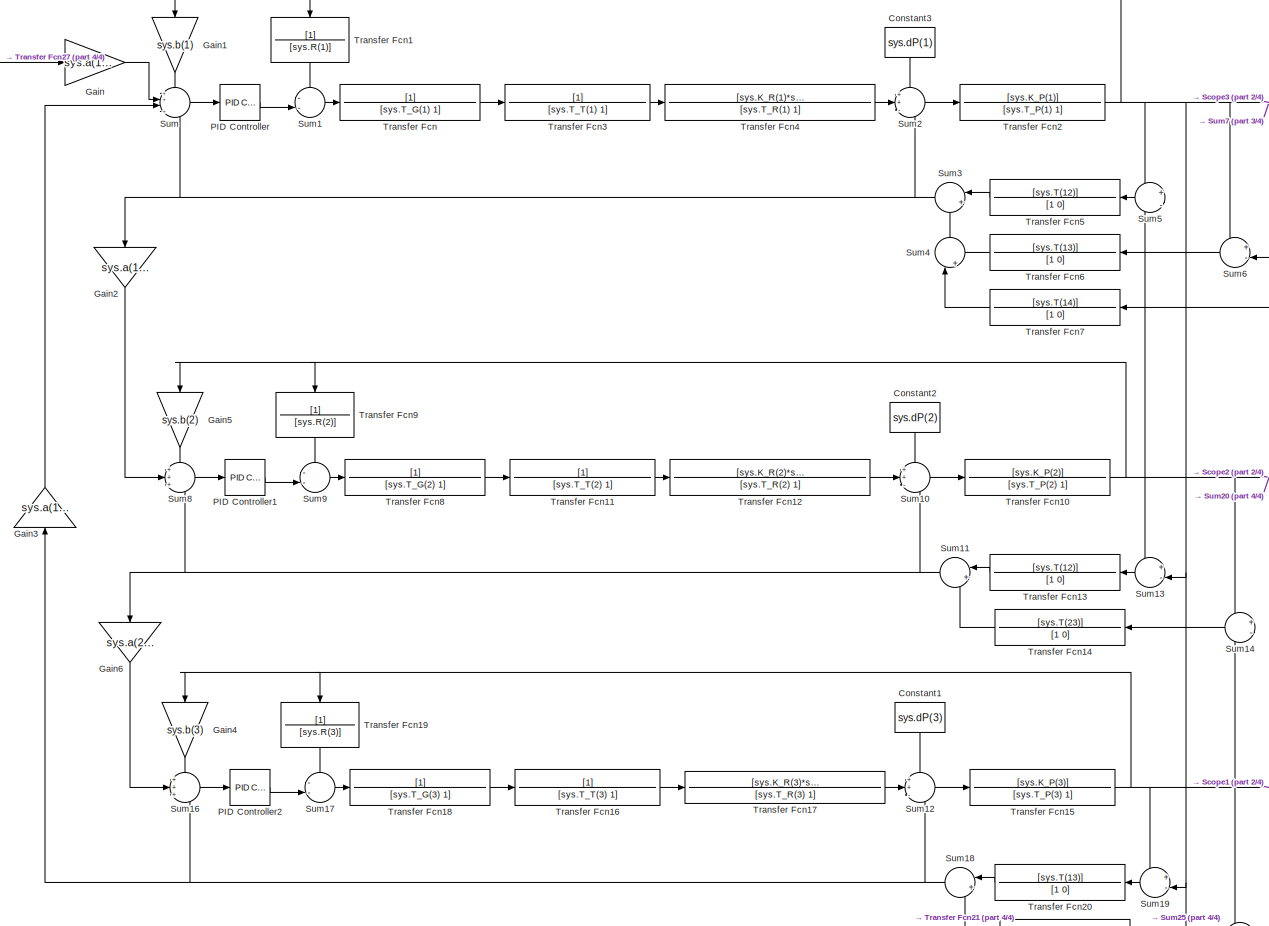
[diagram: root canvas - part 1/4, full width, middle band]
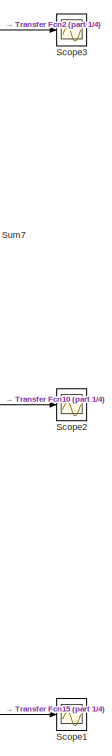
[diagram: root canvas - part 2/4, middle right region]
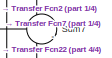
[diagram: root canvas - part 3/4, top right region]
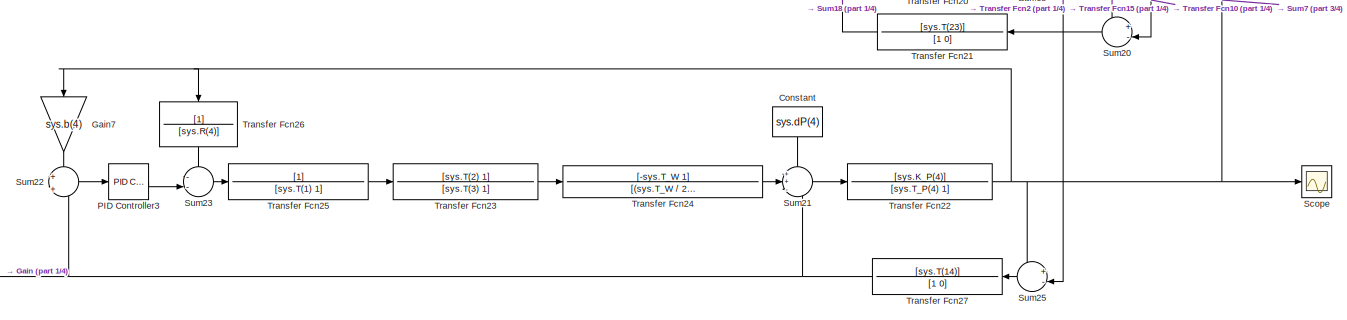
[diagram: root canvas - part 4/4, full width, bottom band]
MODEL slx_bae5938742f6
KIND model
CONFIG AbsTol = auto
CONFIG EnableMultiTasking = off
CONFIG FixedStep = auto
CONFIG MaxStep = auto
CONFIG MinStep = auto
CONFIG RelTol = 1e-3
CONFIG SampleTimeConstraint = Unconstrained
CONFIG SolverName = VariableStepAuto
CONFIG StartTime = 0.0
CONFIG StopTime = 10.0
BLOCK [Constant] Constant
  NameLocation = left
  Value = sys.dP(4)
BLOCK [Constant] Constant1
  NameLocation = left
  Value = sys.dP(3)
BLOCK [Constant] Constant2
  NameLocation = left
  Value = sys.dP(2)
BLOCK [Constant] Constant3
  NameLocation = left
  Value = sys.dP(1)
BLOCK [Gain] Gain
  Gain = sys.a(14)
BLOCK [Gain] Gain1
  Gain = sys.b(1)
  NameLocation = left
BLOCK [Gain] Gain2
  Gain = sys.a(12)
  NameLocation = left
BLOCK [Gain] Gain3
  Gain = sys.a(13)
  NameLocation = right
BLOCK [Gain] Gain4
  Gain = sys.b(3)
  NameLocation = left
BLOCK [Gain] Gain5
  Gain = sys.b(2)
  NameLocation = left
BLOCK [Gain] Gain6
  Gain = sys.a(23)
  NameLocation = left
BLOCK [Gain] Gain7
  Gain = sys.b(4)
  NameLocation = left
BLOCK [Reference] PID Controller  REF=slpidlib/PID Controller
  LibrarySourceBlock = simulink/Continuous/PID Controller
  SourceBlock = slpidlib/PID Controller
  SourceType = PID 1dof
BLOCK [Reference] PID Controller1  REF=slpidlib/PID Controller
  LibrarySourceBlock = simulink/Continuous/PID Controller
  SourceBlock = slpidlib/PID Controller
  SourceType = PID 1dof
BLOCK [Reference] PID Controller2  REF=slpidlib/PID Controller
  LibrarySourceBlock = simulink/Continuous/PID Controller
  SourceBlock = slpidlib/PID Controller
  SourceType = PID 1dof
BLOCK [Reference] PID Controller3  REF=slpidlib/PID Controller
  LibrarySourceBlock = simulink/Continuous/PID Controller
  SourceBlock = slpidlib/PID Controller
  SourceType = PID 1dof
BLOCK [Scope] Scope
  Floating = off
  NumInputPorts = 1
  ScopeSpecificationString = Simulink.scopes.TimeScopeBlockCfg('CurrentConfiguration', extmgr.ConfigurationSet(extmgr.Configuration('Core','General UI',true),extmgr.Configuration('Core','Source UI',true),extmgr.Configuration('Sources','WiredSimulink',true),extmgr.Configuration('Visuals','Time Domain',true),extmgr.Configuration('Tools','Plot Navigation',true),extmgr.Configuration('Tools','Measurements',true)),'Version','2023b'...<+1ch>
BLOCK [Scope] Scope1
  Floating = off
  NumInputPorts = 1
  ScopeSpecificationString = Simulink.scopes.TimeScopeBlockCfg('CurrentConfiguration', extmgr.ConfigurationSet(extmgr.Configuration('Core','General UI',true),extmgr.Configuration('Core','Source UI',true),extmgr.Configuration('Sources','WiredSimulink',true,'DataLoggingVariableName','ScopeData1'),extmgr.Configuration('Visuals','Time Domain',true),extmgr.Configuration('Tools','Plot Navigation',true),extmgr.Configuration('Tools',...<+40ch>
BLOCK [Scope] Scope2
  Floating = off
  NumInputPorts = 1
  ScopeSpecificationString = Simulink.scopes.TimeScopeBlockCfg('CurrentConfiguration', extmgr.ConfigurationSet(extmgr.Configuration('Core','General UI',true),extmgr.Configuration('Core','Source UI',true),extmgr.Configuration('Sources','WiredSimulink',true,'DataLoggingVariableName','ScopeData2'),extmgr.Configuration('Visuals','Time Domain',true),extmgr.Configuration('Tools','Plot Navigation',true),extmgr.Configuration('Tools',...<+40ch>
BLOCK [Scope] Scope3
  Floating = off
  NumInputPorts = 1
  ScopeSpecificationString = Simulink.scopes.TimeScopeBlockCfg('CurrentConfiguration', extmgr.ConfigurationSet(extmgr.Configuration('Core','General UI',true),extmgr.Configuration('Core','Source UI',true),extmgr.Configuration('Sources','WiredSimulink',true,'DataLoggingVariableName','ScopeData3'),extmgr.Configuration('Visuals','Time Domain',true,'SerializedDisplays',{struct('MinYLimReal','-0.000000000000042','MaxYLimReal','0.00...<+1450ch>
BLOCK [Sum] Sum
  Inputs = ++|++
BLOCK [Sum] Sum1
  Inputs = --|
BLOCK [Sum] Sum10
  Inputs = ++-
BLOCK [Sum] Sum11
  Inputs = |++
  NameLocation = top
BLOCK [Sum] Sum12
  Inputs = ++-
BLOCK [Sum] Sum13
  Inputs = +-|
  NameLocation = top
BLOCK [Sum] Sum14
  Inputs = +-
  NameLocation = top
BLOCK [Sum] Sum16
  Inputs = +++
BLOCK [Sum] Sum17
  Inputs = --|
BLOCK [Sum] Sum18
  Inputs = |++
  NameLocation = top
BLOCK [Sum] Sum19
  Inputs = +-|
  NameLocation = top
BLOCK [Sum] Sum2
  Inputs = ++-
BLOCK [Sum] Sum20
  Inputs = +-|
  NameLocation = top
BLOCK [Sum] Sum21
  Inputs = ++-
BLOCK [Sum] Sum22
  Inputs = +|+
BLOCK [Sum] Sum23
  Inputs = --|
BLOCK [Sum] Sum25
  Inputs = +-|
  NameLocation = top
BLOCK [Sum] Sum3
  Inputs = |++
  NameLocation = top
BLOCK [Sum] Sum4
  Inputs = |++
  NameLocation = right
BLOCK [Sum] Sum5
  Inputs = +|-
  NameLocation = top
BLOCK [Sum] Sum6
  Inputs = +-|
  NameLocation = top
BLOCK [Sum] Sum7
  Inputs = +|-
  NameLocation = top
BLOCK [Sum] Sum8
  Inputs = +++
BLOCK [Sum] Sum9
  Inputs = --|
BLOCK [TransferFcn] Transfer Fcn
  Denominator = [sys.T_G(1) 1]
BLOCK [TransferFcn] Transfer Fcn1
  Denominator = [sys.R(1)]
  NameLocation = left
BLOCK [TransferFcn] Transfer Fcn10
  Denominator = [sys.T_P(2) 1]
  Numerator = [sys.K_P(2)]
BLOCK [TransferFcn] Transfer Fcn11
  Denominator = [sys.T_T(2) 1]
BLOCK [TransferFcn] Transfer Fcn12
  Denominator = [sys.T_R(2) 1]
  Numerator = [sys.K_R(2)*sys.T_R(2) 1]
BLOCK [TransferFcn] Transfer Fcn13
  Denominator = [1 0]
  NameLocation = top
  Numerator = [sys.T(12)]
BLOCK [TransferFcn] Transfer Fcn14
  Denominator = [1 0]
  NameLocation = top
  Numerator = [sys.T(23)]
BLOCK [TransferFcn] Transfer Fcn15
  Denominator = [sys.T_P(3) 1]
  Numerator = [sys.K_P(3)]
BLOCK [TransferFcn] Transfer Fcn16
  Denominator = [sys.T_T(3) 1]
BLOCK [TransferFcn] Transfer Fcn17
  Denominator = [sys.T_R(3) 1]
  Numerator = [sys.K_R(3)*sys.T_R(3) 1]
BLOCK [TransferFcn] Transfer Fcn18
  Denominator = [sys.T_G(3) 1]
BLOCK [TransferFcn] Transfer Fcn19
  Denominator = [sys.R(3)]
  NameLocation = left
BLOCK [TransferFcn] Transfer Fcn2
  Denominator = [sys.T_P(1) 1]
  Numerator = [sys.K_P(1)]
BLOCK [TransferFcn] Transfer Fcn20
  Denominator = [1 0]
  NameLocation = top
  Numerator = [sys.T(13)]
BLOCK [TransferFcn] Transfer Fcn21
  Denominator = [1 0]
  NameLocation = top
  Numerator = [sys.T(23)]
BLOCK [TransferFcn] Transfer Fcn22
  Denominator = [sys.T_P(4) 1]
  Numerator = [sys.K_P(4)]
BLOCK [TransferFcn] Transfer Fcn23
  Denominator = [sys.T(3) 1]
  Numerator = [sys.T(2) 1]
BLOCK [TransferFcn] Transfer Fcn24
  Denominator = [(sys.T_W / 2) 1]
  Numerator = [-sys.T_W 1]
BLOCK [TransferFcn] Transfer Fcn25
  Denominator = [sys.T(1) 1]
BLOCK [TransferFcn] Transfer Fcn26
  Denominator = [sys.R(4)]
  NameLocation = left
BLOCK [TransferFcn] Transfer Fcn27
  Denominator = [1 0]
  NameLocation = top
  Numerator = [sys.T(14)]
BLOCK [TransferFcn] Transfer Fcn3
  Denominator = [sys.T_T(1) 1]
BLOCK [TransferFcn] Transfer Fcn4
  Denominator = [sys.T_R(1) 1]
  Numerator = [sys.K_R(1)*sys.T_R(1) 1]
BLOCK [TransferFcn] Transfer Fcn5
  Denominator = [1 0]
  NameLocation = top
  Numerator = [sys.T(12)]
BLOCK [TransferFcn] Transfer Fcn6
  Denominator = [1 0]
  NameLocation = top
  Numerator = [sys.T(13)]
BLOCK [TransferFcn] Transfer Fcn7
  Denominator = [1 0]
  NameLocation = top
  Numerator = [sys.T(14)]
BLOCK [TransferFcn] Transfer Fcn8
  Denominator = [sys.T_G(2) 1]
BLOCK [TransferFcn] Transfer Fcn9
  Denominator = [sys.R(2)]
  NameLocation = left
LINE Constant1:1 -> Sum12:1
LINE Constant2:1 -> Sum10:1
LINE Constant3:1 -> Sum2:1
LINE Constant:1 -> Sum21:1
LINE Gain1:1 -> Sum:1
LINE Gain2:1 -> Sum8:2
LINE Gain3:1 -> Sum:3
LINE Gain4:1 -> Sum16:1
LINE Gain5:1 -> Sum8:1
LINE Gain6:1 -> Sum16:2
LINE Gain7:1 -> Sum22:1
LINE Gain:1 -> Sum:2
LINE PID Controller1:1 -> Sum9:2
LINE PID Controller2:1 -> Sum17:2
LINE PID Controller3:1 -> Sum23:2
LINE PID Controller:1 -> Sum1:2
LINE Sum10:1 -> Transfer Fcn10:1
NET Sum11:1 -> Gain6:1, Sum10:3, Sum8:3
LINE Sum12:1 -> Transfer Fcn15:1
LINE Sum13:1 -> Transfer Fcn13:1
LINE Sum14:1 -> Transfer Fcn14:1
LINE Sum16:1 -> PID Controller2:1
LINE Sum17:1 -> Transfer Fcn18:1
NET Sum18:1 -> Gain3:1, Sum12:3, Sum16:3
LINE Sum19:1 -> Transfer Fcn20:1
LINE Sum1:1 -> Transfer Fcn:1
LINE Sum20:1 -> Transfer Fcn21:1
LINE Sum21:1 -> Transfer Fcn22:1
LINE Sum22:1 -> PID Controller3:1
LINE Sum23:1 -> Transfer Fcn25:1
LINE Sum25:1 -> Transfer Fcn27:1
LINE Sum2:1 -> Transfer Fcn2:1
NET Sum3:1 -> Gain2:1, Sum2:3, Sum:4
LINE Sum4:1 -> Sum3:2
LINE Sum5:1 -> Transfer Fcn5:1
LINE Sum6:1 -> Transfer Fcn6:1
LINE Sum7:1 -> Transfer Fcn7:1
LINE Sum8:1 -> PID Controller1:1
LINE Sum9:1 -> Transfer Fcn8:1
LINE Sum:1 -> PID Controller:1
NET Transfer Fcn10:1 -> Gain5:1, Scope2:1, Sum13:1, Sum14:1, Sum20:2, Sum5:2, Transfer Fcn9:1
LINE Transfer Fcn11:1 -> Transfer Fcn12:1
LINE Transfer Fcn12:1 -> Sum10:2
LINE Transfer Fcn13:1 -> Sum11:1
LINE Transfer Fcn14:1 -> Sum11:2
NET Transfer Fcn15:1 -> Gain4:1, Scope1:1, Sum14:2, Sum19:1, Sum20:1, Sum6:2, Transfer Fcn19:1
LINE Transfer Fcn16:1 -> Transfer Fcn17:1
LINE Transfer Fcn17:1 -> Sum12:2
LINE Transfer Fcn18:1 -> Transfer Fcn16:1
LINE Transfer Fcn19:1 -> Sum17:1
LINE Transfer Fcn1:1 -> Sum1:1
LINE Transfer Fcn20:1 -> Sum18:1
LINE Transfer Fcn21:1 -> Sum18:2
NET Transfer Fcn22:1 -> Gain7:1, Scope:1, Sum25:1, Sum7:2, Transfer Fcn26:1
LINE Transfer Fcn23:1 -> Transfer Fcn24:1
LINE Transfer Fcn24:1 -> Sum21:2
LINE Transfer Fcn25:1 -> Transfer Fcn23:1
LINE Transfer Fcn26:1 -> Sum23:1
NET Transfer Fcn27:1 -> Gain:1, Sum21:3, Sum22:2
NET Transfer Fcn2:1 -> Gain1:1, Scope3:1, Sum13:2, Sum19:2, Sum25:2, Sum5:1, Sum6:1, Sum7:1, Transfer Fcn1:1
LINE Transfer Fcn3:1 -> Transfer Fcn4:1
LINE Transfer Fcn4:1 -> Sum2:2
LINE Transfer Fcn5:1 -> Sum3:1
LINE Transfer Fcn6:1 -> Sum4:2
LINE Transfer Fcn7:1 -> Sum4:1
LINE Transfer Fcn8:1 -> Transfer Fcn11:1
LINE Transfer Fcn9:1 -> Sum9:1
LINE Transfer Fcn:1 -> Transfer Fcn3:1
note: NET lines group one-source signal fan-out (src -> all destinations, sorted); 1:1 wires keep LINE
